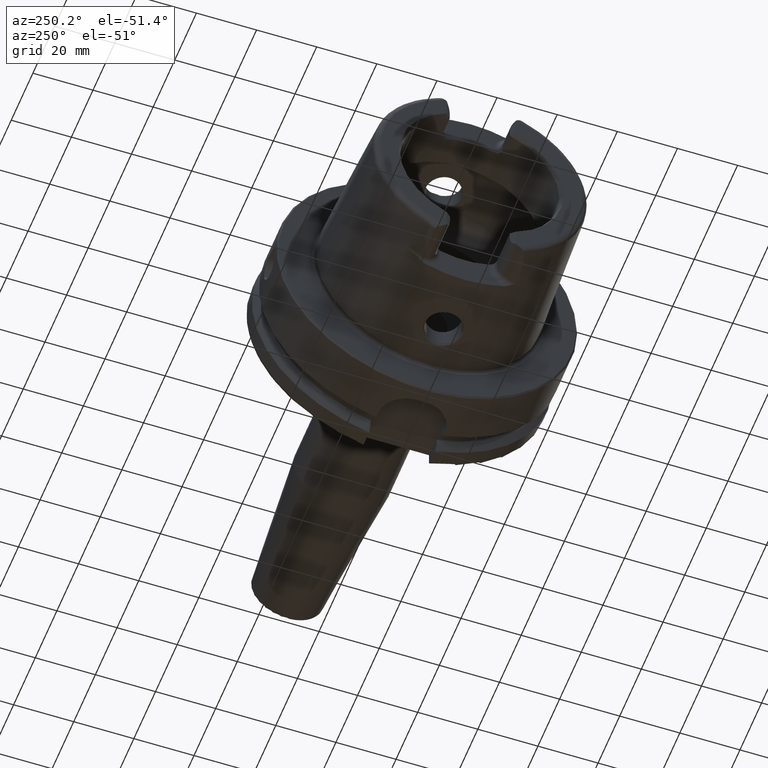
[diagram: clean part render]
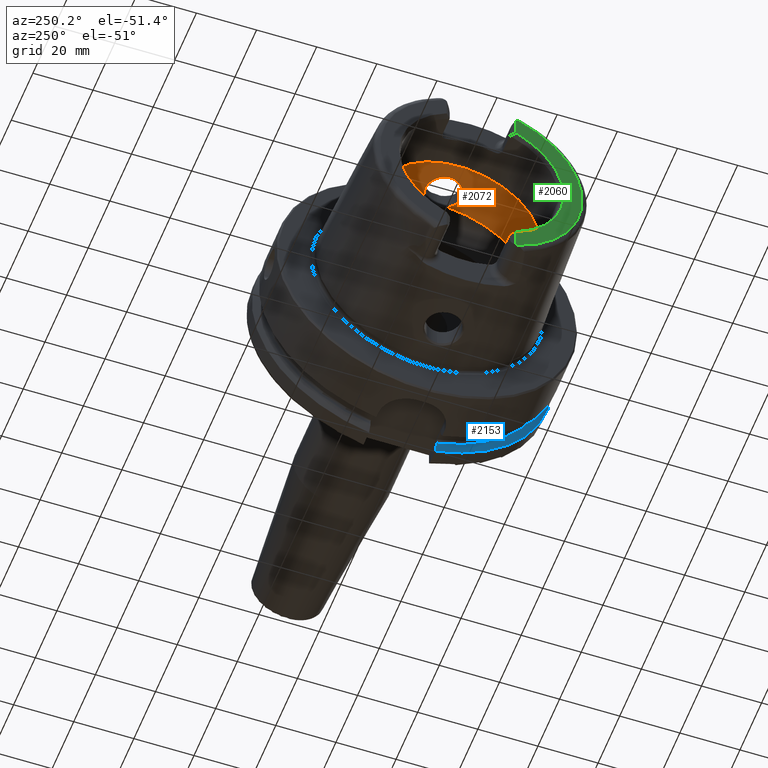
[diagram: same view with three faces highlighted in distinct colors, each labeled with its STEP entity id]
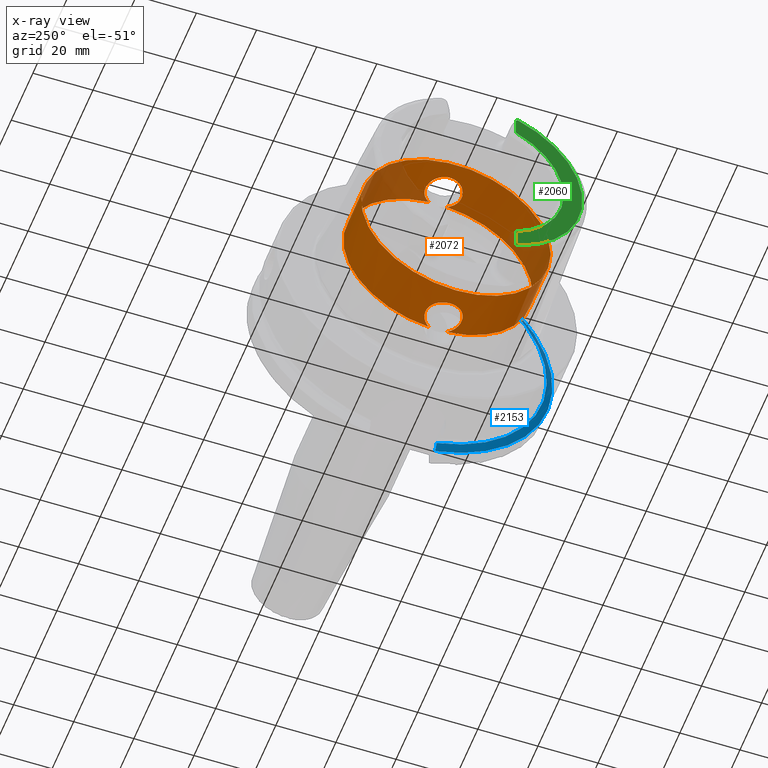
[diagram: x-ray of the same camera — body ghosted, the three highlighted faces saturated]
A machine part, auxiliary view with three faces highlighted in distinct colors.
The next image is the same camera in x-ray (body ghosted, the three faces saturated) — at least one of them is partly hidden behind the body in this view.
Their STEP definitions:

[orange] entity #2072 — the highlighted cylindrical surface (bore or boss wall) has radius 31.5 mm, axis along (-1, 0, 0).
#49=B_SPLINE_CURVE_WITH_KNOTS('',3,(#3703,#3704,#3705,#3706,#3707,#3708,
#3709,#3710,#3711,#3712,#3713,#3714,#3715,#3716,#3717,#3718,#3719,#3720,
#3721,#3722,#3723,#3724,#3725,#3726,#3727,#3728,#3729,#3730,#3731,#3732,
#3733),.UNSPECIFIED.,.F.,.F.,(4,2,2,2,2,2,2,2,2,2,2,3,2,2,4),(-2.42966289251045,
-2.26609494287567,-2.03948128472637,-1.81286762657707,-1.58625396842777,
-1.35964031027847,-1.1330370617835,-0.906433813288535,-0.679830564793567,
-0.453227316298599,-0.226613658149299,0.,0.2266136581493,0.453227316298599,
0.616795265988555),.UNSPECIFIED.);
#54=B_SPLINE_CURVE_WITH_KNOTS('',3,(#3895,#3896,#3897,#3898,#3899,#3900,
#3901,#3902,#3903,#3904,#3905,#3906,#3907,#3908,#3909,#3910,#3911,#3912,
#3913,#3914,#3915,#3916,#3917,#3918,#3919,#3920,#3921,#3922,#3923,#3924,
#3925),.UNSPECIFIED.,.F.,.F.,(4,2,2,3,2,2,2,2,2,2,2,2,2,2,4),(-0.616795265933374,
-0.453227316298598,-0.226613658149299,0.,0.2266136581493,0.453227316298599,
0.679830564793567,0.906433813288535,1.1330370617835,1.35964031027847,1.58625396842777,
1.81286762657707,2.03948128472637,2.26609494287567,2.42966289256562),
 .UNSPECIFIED.);
#187=CYLINDRICAL_SURFACE('',#2277,31.5);
#250=FACE_OUTER_BOUND('',#381,.T.);
#381=EDGE_LOOP('',(#1568,#1569,#1570,#1571,#1572,#1573,#1574,#1575,#1576));
#514=LINE('',#3941,#622);
#622=VECTOR('',#2694,31.5);
#738=CIRCLE('',#2278,31.5);
#739=CIRCLE('',#2279,31.5);
#740=CIRCLE('',#2280,31.5);
#741=CIRCLE('',#2281,31.5);
#742=CIRCLE('',#2282,31.5);
#919=VERTEX_POINT('',#3691);
#920=VERTEX_POINT('',#3702);
#923=VERTEX_POINT('',#3882);
#925=VERTEX_POINT('',#3894);
#926=VERTEX_POINT('',#3938);
#927=VERTEX_POINT('',#3940);
#928=VERTEX_POINT('',#3942);
#1161=EDGE_CURVE('',#920,#919,#49,.T.);
#1167=EDGE_CURVE('',#925,#923,#54,.T.);
#1170=EDGE_CURVE('',#926,#923,#738,.T.);
#1171=EDGE_CURVE('',#926,#927,#514,.T.);
#1172=EDGE_CURVE('',#927,#928,#739,.T.);
#1173=EDGE_CURVE('',#928,#927,#740,.T.);
#1174=EDGE_CURVE('',#920,#926,#741,.T.);
#1175=EDGE_CURVE('',#925,#919,#742,.T.);
#1568=ORIENTED_EDGE('',*,*,#1167,.T.);
#1569=ORIENTED_EDGE('',*,*,#1170,.F.);
#1570=ORIENTED_EDGE('',*,*,#1171,.T.);
#1571=ORIENTED_EDGE('',*,*,#1172,.T.);
#1572=ORIENTED_EDGE('',*,*,#1173,.T.);
#1573=ORIENTED_EDGE('',*,*,#1171,.F.);
#1574=ORIENTED_EDGE('',*,*,#1174,.F.);
#1575=ORIENTED_EDGE('',*,*,#1161,.T.);
#1576=ORIENTED_EDGE('',*,*,#1175,.F.);
#2072=ADVANCED_FACE('',(#250),#187,.F.);
#2277=AXIS2_PLACEMENT_3D('',#3937,#2690,#2691);
#2278=AXIS2_PLACEMENT_3D('',#3939,#2692,#2693);
#2279=AXIS2_PLACEMENT_3D('',#3943,#2695,#2696);
#2280=AXIS2_PLACEMENT_3D('',#3944,#2697,#2698);
#2281=AXIS2_PLACEMENT_3D('',#3945,#2699,#2700);
#2282=AXIS2_PLACEMENT_3D('',#3946,#2701,#2702);
#2690=DIRECTION('center_axis',(-1.,0.,0.));
#2691=DIRECTION('ref_axis',(0.,1.,0.));
#2692=DIRECTION('center_axis',(-1.,0.,0.));
#2693=DIRECTION('ref_axis',(0.,0.,1.));
#2694=DIRECTION('',(-1.,0.,0.));
#2695=DIRECTION('center_axis',(-1.,0.,0.));
#2696=DIRECTION('ref_axis',(0.,0.,1.));
#2697=DIRECTION('center_axis',(-1.,0.,0.));
#2698=DIRECTION('ref_axis',(0.,0.,1.));
#2699=DIRECTION('center_axis',(-1.,0.,0.));
#2700=DIRECTION('ref_axis',(0.,0.,1.));
#2701=DIRECTION('center_axis',(-1.,0.,0.));
#2702=DIRECTION('ref_axis',(0.,0.,1.));
#3691=CARTESIAN_POINT('',(-9.74679434480896,2.89893607109041,-31.3663222207471));
#3702=CARTESIAN_POINT('',(-9.74679434480896,-2.89893607109041,-31.3663222207471));
#3703=CARTESIAN_POINT('Ctrl Pts',(-9.74679434480898,-2.8989360710904,-31.3663222207471));
#3704=CARTESIAN_POINT('Ctrl Pts',(-10.0245557799842,-3.40227174537722,-31.3198029657389));
#3705=CARTESIAN_POINT('Ctrl Pts',(-10.3735944692601,-3.85887584349869,-31.2651415110221));
#3706=CARTESIAN_POINT('Ctrl Pts',(-11.289042660848,-4.77432403508655,-31.140708727458));
#3707=CARTESIAN_POINT('Ctrl Pts',(-11.9624834305428,-5.23577180141274,-31.0633803744766));
#3708=CARTESIAN_POINT('Ctrl Pts',(-13.4401908644727,-5.84865855662958,-30.9538382316308));
#3709=CARTESIAN_POINT('Ctrl Pts',(-14.2446211395023,-6.00000000000001,-30.9232921921325));
#3710=CARTESIAN_POINT('Ctrl Pts',(-15.7553788604977,-6.00000000000001,-30.9232921921325));
#3711=CARTESIAN_POINT('Ctrl Pts',(-16.5598091355273,-5.84865855662958,-30.9538382316308));
#3712=CARTESIAN_POINT('Ctrl Pts',(-18.0375165694572,-5.23577180141275,-31.0633803744766));
#3713=CARTESIAN_POINT('Ctrl Pts',(-18.710957339152,-4.77432403508655,-31.140708727458));
#3714=CARTESIAN_POINT('Ctrl Pts',(-19.7742996118461,-3.71098176239249,-31.2852440928545));
#3715=CARTESIAN_POINT('Ctrl Pts',(-20.2357665181958,-3.03753058698362,-31.3619556484746));
#3716=CARTESIAN_POINT('Ctrl Pts',(-20.8486671603361,-1.55978711209124,-31.4700797313679));
#3717=CARTESIAN_POINT('Ctrl Pts',(-21.,-0.755344161649895,-31.5));
#3718=CARTESIAN_POINT('Ctrl Pts',(-21.,0.755344161649892,-31.5));
#3719=CARTESIAN_POINT('Ctrl Pts',(-20.8486671603361,1.55978711209124,-31.4700797313679));
#3720=CARTESIAN_POINT('Ctrl Pts',(-20.2357665181958,3.03753058698362,-31.3619556484746));
#3721=CARTESIAN_POINT('Ctrl Pts',(-19.7742996118461,3.71098176239249,-31.2852440928545));
#3722=CARTESIAN_POINT('Ctrl Pts',(-18.710957339152,4.77432403508655,-31.140708727458));
#3723=CARTESIAN_POINT('Ctrl Pts',(-18.0375165694572,5.23577180141274,-31.0633803744766));
#3724=CARTESIAN_POINT('Ctrl Pts',(-16.5598091355273,5.84865855662958,-30.9538382316308));
#3725=CARTESIAN_POINT('Ctrl Pts',(-15.7553788604977,6.00000000000001,-30.9232921921325));
#3726=CARTESIAN_POINT('Ctrl Pts',(-15.,6.00000000000001,-30.9232921921325));
#3727=CARTESIAN_POINT('Ctrl Pts',(-14.2446211395023,6.00000000000001,-30.9232921921325));
#3728=CARTESIAN_POINT('Ctrl Pts',(-13.4401908644727,5.84865855662958,-30.9538382316308));
#3729=CARTESIAN_POINT('Ctrl Pts',(-11.9624834305428,5.23577180141274,-31.0633803744766));
#3730=CARTESIAN_POINT('Ctrl Pts',(-11.289042660848,4.77432403508655,-31.140708727458));
#3731=CARTESIAN_POINT('Ctrl Pts',(-10.3735944691306,3.85887584336922,-31.2651415110397));
#3732=CARTESIAN_POINT('Ctrl Pts',(-10.0245557801354,3.40227174565105,-31.3198029657135));
#3733=CARTESIAN_POINT('Ctrl Pts',(-9.74679434480898,2.8989360710904,-31.3663222207471));
#3882=CARTESIAN_POINT('',(-9.74679434480896,-2.89893607109042,31.3663222207471));
#3894=CARTESIAN_POINT('',(-9.74679434480896,2.89893607109042,31.3663222207471));
#3895=CARTESIAN_POINT('Ctrl Pts',(-9.74679434480897,2.89893607109041,31.3663222207471));
#3896=CARTESIAN_POINT('Ctrl Pts',(-10.0245557799842,3.40227174537723,31.3198029657389));
#3897=CARTESIAN_POINT('Ctrl Pts',(-10.3735944692601,3.85887584349869,31.2651415110221));
#3898=CARTESIAN_POINT('Ctrl Pts',(-11.289042660848,4.77432403508655,31.140708727458));
#3899=CARTESIAN_POINT('Ctrl Pts',(-11.9624834305428,5.23577180141274,31.0633803744766));
#3900=CARTESIAN_POINT('Ctrl Pts',(-13.4401908644727,5.84865855662958,30.9538382316308));
#3901=CARTESIAN_POINT('Ctrl Pts',(-14.2446211395023,6.00000000000001,30.9232921921325));
#3902=CARTESIAN_POINT('Ctrl Pts',(-15.,6.00000000000001,30.9232921921325));
#3903=CARTESIAN_POINT('Ctrl Pts',(-15.7553788604977,6.00000000000001,30.9232921921325));
#3904=CARTESIAN_POINT('Ctrl Pts',(-16.5598091355273,5.84865855662958,30.9538382316308));
#3905=CARTESIAN_POINT('Ctrl Pts',(-18.0375165694572,5.23577180141274,31.0633803744766));
#3906=CARTESIAN_POINT('Ctrl Pts',(-18.710957339152,4.77432403508655,31.140708727458));
#3907=CARTESIAN_POINT('Ctrl Pts',(-19.7742996118461,3.71098176239249,31.2852440928545));
#3908=CARTESIAN_POINT('Ctrl Pts',(-20.2357665181958,3.03753058698362,31.3619556484746));
#3909=CARTESIAN_POINT('Ctrl Pts',(-20.8486671603361,1.55978711209124,31.4700797313679));
#3910=CARTESIAN_POINT('Ctrl Pts',(-21.,0.755344161649892,31.5));
#3911=CARTESIAN_POINT('Ctrl Pts',(-21.,-0.755344161649894,31.5));
#3912=CARTESIAN_POINT('Ctrl Pts',(-20.8486671603361,-1.55978711209124,31.4700797313679));
#3913=CARTESIAN_POINT('Ctrl Pts',(-20.2357665181958,-3.03753058698362,31.3619556484746));
#3914=CARTESIAN_POINT('Ctrl Pts',(-19.7742996118461,-3.71098176239249,31.2852440928545));
#3915=CARTESIAN_POINT('Ctrl Pts',(-18.710957339152,-4.77432403508655,31.140708727458));
#3916=CARTESIAN_POINT('Ctrl Pts',(-18.0375165694572,-5.23577180141274,31.0633803744766));
#3917=CARTESIAN_POINT('Ctrl Pts',(-16.5598091355273,-5.84865855662958,30.9538382316308));
#3918=CARTESIAN_POINT('Ctrl Pts',(-15.7553788604977,-6.00000000000001,30.9232921921325));
#3919=CARTESIAN_POINT('Ctrl Pts',(-14.2446211395023,-6.00000000000001,30.9232921921325));
#3920=CARTESIAN_POINT('Ctrl Pts',(-13.4401908644727,-5.84865855662958,30.9538382316308));
#3921=CARTESIAN_POINT('Ctrl Pts',(-11.9624834305428,-5.23577180141274,31.0633803744766));
#3922=CARTESIAN_POINT('Ctrl Pts',(-11.289042660848,-4.77432403508655,31.140708727458));
#3923=CARTESIAN_POINT('Ctrl Pts',(-10.3735944691306,-3.85887584336922,31.2651415110397));
#3924=CARTESIAN_POINT('Ctrl Pts',(-10.0245557801353,-3.40227174565106,31.3198029657135));
#3925=CARTESIAN_POINT('Ctrl Pts',(-9.74679434480897,-2.89893607109041,31.3663222207471));
#3937=CARTESIAN_POINT('Origin',(-18.1430342013226,0.,0.));
#3938=CARTESIAN_POINT('',(-9.74679434480896,-31.5,3.85763741731416E-15));
#3939=CARTESIAN_POINT('Origin',(-9.74679434480896,0.,0.));
#3940=CARTESIAN_POINT('',(-26.5392740578363,-31.5,3.85763741731416E-15));
#3941=CARTESIAN_POINT('',(-18.1430342013226,-31.5,3.85763741731416E-15));
#3942=CARTESIAN_POINT('',(-26.5392740578363,-3.85763741731416E-15,-31.5));
#3943=CARTESIAN_POINT('Origin',(-26.5392740578363,0.,0.));
#3944=CARTESIAN_POINT('Origin',(-26.5392740578363,0.,0.));
#3945=CARTESIAN_POINT('Origin',(-9.74679434480896,0.,0.));
#3946=CARTESIAN_POINT('Origin',(-9.74679434480896,0.,0.));

[blue] entity #2153 — the highlighted conical surface has half-angle 60 deg.
#20=(
BOUNDED_CURVE()
B_SPLINE_CURVE(2,(#4108,#4109,#4110),.UNSPECIFIED.,.F.,.F.)
B_SPLINE_CURVE_WITH_KNOTS((3,3),(0.,0.343884390880419),.UNSPECIFIED.)
CURVE()
GEOMETRIC_REPRESENTATION_ITEM()
RATIONAL_B_SPLINE_CURVE((1.,1.00052016257005,1.))
REPRESENTATION_ITEM('')
);
#25=(
BOUNDED_CURVE()
B_SPLINE_CURVE(2,(#4323,#4324,#4325),.UNSPECIFIED.,.F.,.F.)
B_SPLINE_CURVE_WITH_KNOTS((3,3),(0.,0.28292349080556),.UNSPECIFIED.)
CURVE()
GEOMETRIC_REPRESENTATION_ITEM()
RATIONAL_B_SPLINE_CURVE((1.,1.0003193410929,1.))
REPRESENTATION_ITEM('')
);
#331=FACE_OUTER_BOUND('',#467,.T.);
#467=EDGE_LOOP('',(#1998,#1999,#2000,#2001));
#770=CIRCLE('',#2337,50.);
#822=CIRCLE('',#2442,47.5975952641917);
#954=VERTEX_POINT('',#4105);
#955=VERTEX_POINT('',#4107);
#989=VERTEX_POINT('',#4320);
#990=VERTEX_POINT('',#4322);
#1207=EDGE_CURVE('',#955,#954,#20,.T.);
#1257=EDGE_CURVE('',#990,#989,#25,.T.);
#1273=EDGE_CURVE('',#955,#989,#770,.T.);
#1358=EDGE_CURVE('',#954,#990,#822,.T.);
#1998=ORIENTED_EDGE('',*,*,#1207,.T.);
#1999=ORIENTED_EDGE('',*,*,#1358,.T.);
#2000=ORIENTED_EDGE('',*,*,#1257,.T.);
#2001=ORIENTED_EDGE('',*,*,#1273,.F.);
#2032=CONICAL_SURFACE('',#2443,48.7987976320958,1.0471975511966);
#2153=ADVANCED_FACE('',(#331),#2032,.T.);
#2337=AXIS2_PLACEMENT_3D('',#4385,#2849,#2850);
#2442=AXIS2_PLACEMENT_3D('',#4629,#3083,#3084);
#2443=AXIS2_PLACEMENT_3D('',#4630,#3085,#3086);
#2849=DIRECTION('center_axis',(1.,0.,0.));
#2850=DIRECTION('ref_axis',(0.,0.,-1.));
#3083=DIRECTION('center_axis',(1.,0.,0.));
#3084=DIRECTION('ref_axis',(0.,0.,-1.));
#3085=DIRECTION('center_axis',(1.,0.,0.));
#3086=DIRECTION('ref_axis',(0.,-0.951449961441176,-0.307803461438603));
#4105=CARTESIAN_POINT('',(21.875,-35.6830642593065,31.5));
#4107=CARTESIAN_POINT('',(23.2620290209214,-38.8297566307078,31.5));
#4108=CARTESIAN_POINT('Ctrl Pts',(23.2620290209214,-38.8297566307078,31.5));
#4109=CARTESIAN_POINT('Ctrl Pts',(22.5392272442767,-37.2176818849707,31.5));
#4110=CARTESIAN_POINT('Ctrl Pts',(21.875,-35.6830642593065,31.5));
#4320=CARTESIAN_POINT('',(23.2620290209214,-11.,-48.7749935930288));
#4322=CARTESIAN_POINT('',(21.875,-11.,-46.3090819919138));
#4323=CARTESIAN_POINT('Ctrl Pts',(21.875,-11.,-46.3090819919138));
#4324=CARTESIAN_POINT('Ctrl Pts',(22.5505288964237,-11.,-47.5116880808802));
#4325=CARTESIAN_POINT('Ctrl Pts',(23.2620290209214,-11.,-48.7749935930288));
#4385=CARTESIAN_POINT('Origin',(23.2620290209214,0.,0.));
#4629=CARTESIAN_POINT('Origin',(21.875,0.,0.));
#4630=CARTESIAN_POINT('Origin',(22.5685145104607,0.,0.));

[green] entity #2060 — the highlighted planar face has unit normal (-1, 0, 0).
#105=PLANE('',#2252);
#238=FACE_OUTER_BOUND('',#367,.T.);
#367=EDGE_LOOP('',(#1488,#1489,#1490,#1491,#1492,#1493));
#497=LINE('',#3280,#605);
#499=LINE('',#3299,#607);
#605=VECTOR('',#2611,10.);
#607=VECTOR('',#2633,10.);
#723=CIRCLE('',#2248,27.3660254037844);
#726=CIRCLE('',#2253,4.88);
#727=CIRCLE('',#2254,33.6001839277785);
#728=CIRCLE('',#2255,4.88);
#879=VERTEX_POINT('',#3277);
#880=VERTEX_POINT('',#3279);
#882=VERTEX_POINT('',#3285);
#885=VERTEX_POINT('',#3293);
#886=VERTEX_POINT('',#3295);
#887=VERTEX_POINT('',#3297);
#1108=EDGE_CURVE('',#879,#880,#497,.T.);
#1111=EDGE_CURVE('',#880,#882,#723,.T.);
#1115=EDGE_CURVE('',#879,#885,#726,.T.);
#1116=EDGE_CURVE('',#886,#885,#727,.T.);
#1117=EDGE_CURVE('',#886,#887,#728,.T.);
#1118=EDGE_CURVE('',#882,#887,#499,.T.);
#1488=ORIENTED_EDGE('',*,*,#1108,.F.);
#1489=ORIENTED_EDGE('',*,*,#1115,.T.);
#1490=ORIENTED_EDGE('',*,*,#1116,.F.);
#1491=ORIENTED_EDGE('',*,*,#1117,.T.);
#1492=ORIENTED_EDGE('',*,*,#1118,.F.);
#1493=ORIENTED_EDGE('',*,*,#1111,.F.);
#2060=ADVANCED_FACE('',(#238),#105,.T.);
#2248=AXIS2_PLACEMENT_3D('',#3286,#2617,#2618);
#2252=AXIS2_PLACEMENT_3D('',#3292,#2625,#2626);
#2253=AXIS2_PLACEMENT_3D('',#3294,#2627,#2628);
#2254=AXIS2_PLACEMENT_3D('',#3296,#2629,#2630);
#2255=AXIS2_PLACEMENT_3D('',#3298,#2631,#2632);
#2611=DIRECTION('',(0.,0.,1.));
#2617=DIRECTION('center_axis',(-1.,0.,0.));
#2618=DIRECTION('ref_axis',(0.,-1.,0.));
#2625=DIRECTION('center_axis',(-1.,0.,0.));
#2626=DIRECTION('ref_axis',(0.,0.,1.));
#2627=DIRECTION('center_axis',(-1.,0.,0.));
#2628=DIRECTION('ref_axis',(0.,-1.,0.));
#2629=DIRECTION('center_axis',(1.,0.,0.));
#2630=DIRECTION('ref_axis',(0.,0.,-1.));
#2631=DIRECTION('center_axis',(-1.,0.,0.));
#2632=DIRECTION('ref_axis',(0.,0.477884921181369,-0.878422450821629));
#2633=DIRECTION('',(0.,0.,1.));
#3277=CARTESIAN_POINT('',(-50.,-11.51,-30.8899431813596));
#3279=CARTESIAN_POINT('',(-50.,-11.51,-24.8277918148307));
#3280=CARTESIAN_POINT('',(-50.,-11.51,-13.685));
#3285=CARTESIAN_POINT('',(-50.,-11.51,24.8277918148307));
#3286=CARTESIAN_POINT('Origin',(-50.,0.,0.));
#3292=CARTESIAN_POINT('Origin',(-50.,33.6001839277785,0.));
#3293=CARTESIAN_POINT('',(-50.,-12.0743049948301,-31.355757348091));
#3294=CARTESIAN_POINT('Origin',(-50.,-14.89,-27.37));
#3295=CARTESIAN_POINT('',(-50.,-12.0743049948301,31.355757348091));
#3296=CARTESIAN_POINT('Origin',(-50.,0.,0.));
#3297=CARTESIAN_POINT('',(-50.,-11.51,30.8899431813596));
#3298=CARTESIAN_POINT('Origin',(-50.,-14.89,27.37));
#3299=CARTESIAN_POINT('',(-50.,-11.51,9.));